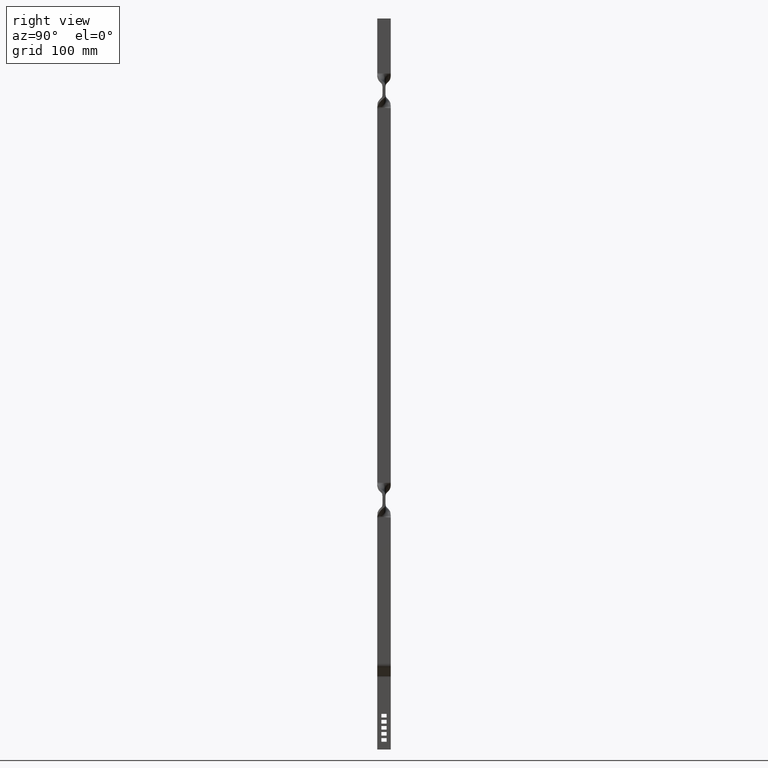
[diagram: clean part render]
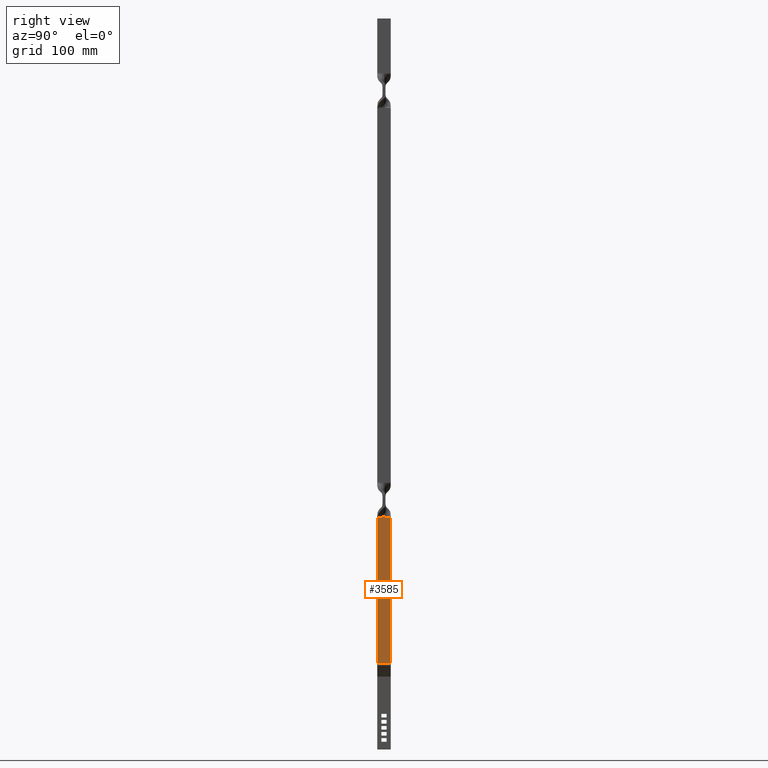
[diagram: same view with one face highlighted and labeled with its STEP entity id]
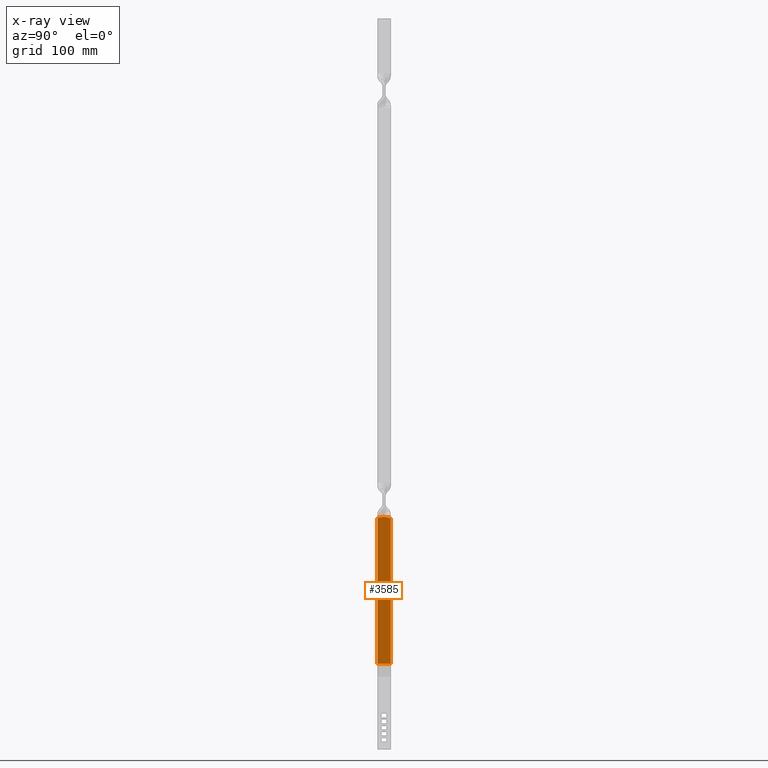
[diagram: x-ray of the same camera — body ghosted, the highlighted face saturated]
A machine part, right view. The second image highlights one B-rep face of the part: STEP entity #3585.
The next image is the same camera in x-ray: the body ghosted, the highlighted face saturated — about 0% of this face is hidden behind the body in this view.
In plain terms, the highlighted face is a freeform B-spline surface patch.
Its self-contained STEP definition (entity closure, byte-faithful):
#1163=CARTESIAN_POINT('',(10.500000001513220,-0.271775746167991,231.499999864597500));
#1164=VERTEX_POINT('',#1163);
#1165=CARTESIAN_POINT('',(10.499999999975440,-6.999999999999901,230.313138716548000));
#1166=VERTEX_POINT('',#1165);
#1167=CARTESIAN_POINT('',(10.500000001513220,-0.271775746167991,231.499999864597500));
#1168=CARTESIAN_POINT('',(10.499999999975440,-0.828539088456262,231.380513342924590));
#1169=CARTESIAN_POINT('',(10.499999999975470,-1.385497779343030,231.259857673353910));
#1170=CARTESIAN_POINT('',(10.499999999975460,-2.501416190333276,231.030179031229610));
#1171=CARTESIAN_POINT('',(10.499999999975399,-3.060551510413107,230.921249581253190));
#1172=CARTESIAN_POINT('',(10.499999999975410,-4.182003036503339,230.720280133149910));
#1173=CARTESIAN_POINT('',(10.499999999975421,-4.743981124447734,230.628100186710900));
#1174=CARTESIAN_POINT('',(10.499999999975421,-5.870317070206129,230.459521709301210));
#1175=CARTESIAN_POINT('',(10.499999999975440,-6.434661942369127,230.383037064140810));
#1176=CARTESIAN_POINT('',(10.499999999975440,-6.999999999999890,230.313138716548000));
#1177=B_SPLINE_CURVE_WITH_KNOTS('',3,(#1167,#1168,#1169,#1170,#1171,#1172,#1173,#1174,#1175,#1176),.UNSPECIFIED.,.F.,.U.,(4,2,2,2,4),(0.0,0.250000000000000,0.500000000000000,0.750000000000000,1.0),.UNSPECIFIED.);
#1178=EDGE_CURVE('',#1164,#1166,#1177,.T.);
#1302=CARTESIAN_POINT('',(10.499999999975440,7.0,230.289823060119010));
#1303=VERTEX_POINT('',#1302);
#1304=CARTESIAN_POINT('',(10.499999999975440,6.999999999999790,230.289823060119010));
#1305=CARTESIAN_POINT('',(10.499999999975440,6.389812878324668,230.363019088062710));
#1306=CARTESIAN_POINT('',(10.499999999975520,5.780642736340512,230.443213533543400));
#1307=CARTESIAN_POINT('',(10.499999999975509,4.564574697634731,230.619239040682690));
#1308=CARTESIAN_POINT('',(10.499999999975371,3.957689163754218,230.715155178106900));
#1309=CARTESIAN_POINT('',(10.499999999975380,2.746067614053412,230.921779513228500));
#1310=CARTESIAN_POINT('',(10.499999999975429,2.141573673938030,231.032512532926490));
#1311=CARTESIAN_POINT('',(10.499999999975429,0.934187228391980,231.262608756842010));
#1312=CARTESIAN_POINT('',(10.499999999975440,0.331125424535909,231.381840328220590));
#1313=CARTESIAN_POINT('',(10.500000001513220,-0.271775746167991,231.499999864597500));
#1314=B_SPLINE_CURVE_WITH_KNOTS('',3,(#1304,#1305,#1306,#1307,#1308,#1309,#1310,#1311,#1312,#1313),.UNSPECIFIED.,.F.,.U.,(4,2,2,2,4),(0.0,0.250000000000000,0.500000000000000,0.750000000000000,1.0),.UNSPECIFIED.);
#1315=EDGE_CURVE('',#1303,#1164,#1314,.T.);
#1899=CARTESIAN_POINT('',(10.499999999976399,7.0,79.227923650092407));
#1900=VERTEX_POINT('',#1899);
#1916=CARTESIAN_POINT('',(10.499999999976399,-6.999999999999901,79.227923650092407));
#1917=VERTEX_POINT('',#1916);
#1918=CARTESIAN_POINT('',(10.499999999976399,-6.999999999999901,79.227923650092407));
#1919=CARTESIAN_POINT('',(10.499999999976399,7.0,79.227923650092407));
#1920=QUASI_UNIFORM_CURVE('',1,(#1918,#1919),.UNSPECIFIED.,.F.,.U.);
#1921=EDGE_CURVE('',#1917,#1900,#1920,.T.);
#3498=CARTESIAN_POINT('',(10.499999999975440,-6.999999999999901,230.313138716548000));
#3499=CARTESIAN_POINT('',(10.499999999976399,-6.999999999999901,79.227923650092407));
#3500=QUASI_UNIFORM_CURVE('',1,(#3498,#3499),.UNSPECIFIED.,.F.,.U.);
#3501=EDGE_CURVE('',#1166,#1917,#3500,.T.);
#3514=CARTESIAN_POINT('',(10.499999999975440,7.0,230.289823060119010));
#3515=CARTESIAN_POINT('',(10.499999999976399,7.0,79.227923650092407));
#3516=QUASI_UNIFORM_CURVE('',1,(#3514,#3515),.UNSPECIFIED.,.F.,.U.);
#3517=EDGE_CURVE('',#1303,#1900,#3516,.T.);
#3573=CARTESIAN_POINT('',(10.499999999975440,-7.699299972865180,71.621929450046792));
#3574=CARTESIAN_POINT('',(10.499999999975440,-7.699299972865180,239.105994064643110));
#3575=CARTESIAN_POINT('',(10.499999999975440,7.699300348374543,71.621929450046792));
#3576=CARTESIAN_POINT('',(10.499999999975440,7.699300348374543,239.105994064643110));
#3577=B_SPLINE_SURFACE_WITH_KNOTS('',1,1,((#3573,#3575),(#3574,#3576)),.UNSPECIFIED.,.F.,.F.,.U.,(2,2),(2,2),(0.0,167.484064614596290),(0.0,15.398600321239719),.UNSPECIFIED.);
#3578=ORIENTED_EDGE('',*,*,#3517,.F.);
#3579=ORIENTED_EDGE('',*,*,#1315,.T.);
#3580=ORIENTED_EDGE('',*,*,#1178,.T.);
#3581=ORIENTED_EDGE('',*,*,#3501,.T.);
#3582=ORIENTED_EDGE('',*,*,#1921,.T.);
#3583=EDGE_LOOP('',(#3578,#3579,#3580,#3581,#3582));
#3584=FACE_OUTER_BOUND('',#3583,.T.);
#3585=ADVANCED_FACE('',(#3584),#3577,.F.);